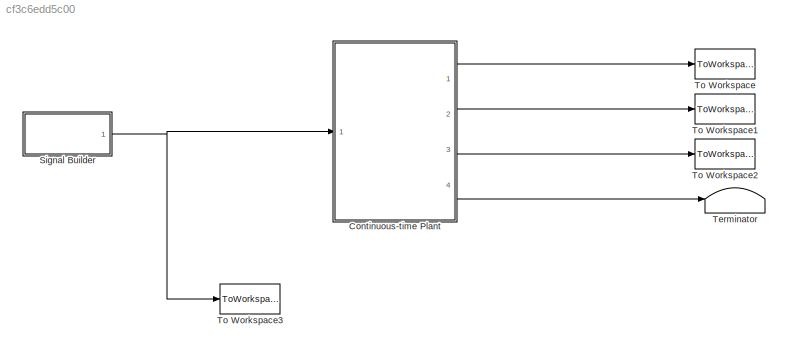
MODEL slx_cf3c6edd5c00
KIND model
CONFIG AbsTol = auto
CONFIG EnableMultiTasking = off
CONFIG FixedStep = auto
CONFIG MaxStep = MaxStep
CONFIG MinStep = auto
CONFIG RelTol = RelTol
CONFIG SampleTimeConstraint = Unconstrained
CONFIG Solver = VariableStepAuto
CONFIG SolverName = VariableStepAuto
CONFIG StartTime = 0.0
CONFIG StopTime = T
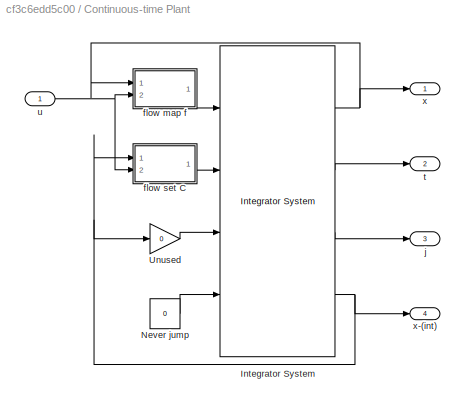
BLOCK [SubSystem] Continuous-time Plant
  CopyFcn = set_param(gcb,'LinkStatus','none'),                                      \nset_param(gcs, 'MaxStep', 'MaxStep', 'RelTol', 'RelTol','StopTime', 'T')
  LoadFcn = set_param(gcb,'LinkStatus','none')
  Ports = [1, 4]
  RequestExecContextInheritance = off
BLOCK [Reference] Continuous-time Plant/Integrator System  REF=HyEQ_Library/Other/Integrator System
  Ports = [4, 4]
  Priority = 2
  SourceBlock = HyEQ_Library/Other/Integrator System
  SourceProductName = Hybrid Equations Toolbox
  SourceType = Hybrid Integrator
BLOCK [Constant] Continuous-time Plant/Never jump
  Value = 0
BLOCK [Gain] Continuous-time Plant/Unused
  Gain = 0
  OutDataTypeStr = Inherit: Inherit via internal rule
  ParamDataTypeStr = Inherit: Inherit via internal rule
  SaturateOnIntegerOverflow = off
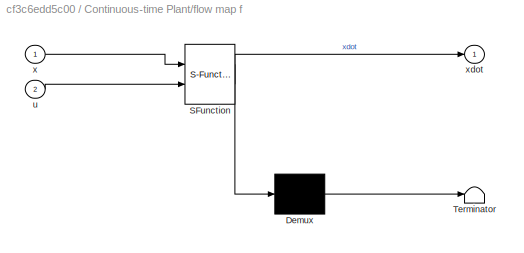
BLOCK [SubSystem] Continuous-time Plant/flow map f
  ErrorFcn = Stateflow.Translate.translate
  PermitHierarchicalResolution = ExplicitOnly
  Ports = [2, 1]
  RequestExecContextInheritance = off
  SFBlockType = MATLAB Function
  TreatAsAtomicUnit = on
BLOCK [Demux] Continuous-time Plant/flow map f/ Demux 
  Outputs = 1
  Ports = [1, 1]
BLOCK [S-Function] Continuous-time Plant/flow map f/ SFunction 
  EnableBusSupport = on
  FunctionName = sf_sfun
  PortCounts = [2 2]
  Ports = [2, 2]
  SFcnIsStateOwnerBlock = off
  SFunctionDeploymentMode = off
  Tag = Stateflow S-Function TemperatureInAroom 21
BLOCK [Terminator] Continuous-time Plant/flow map f/ Terminator 
BLOCK [Inport] Continuous-time Plant/flow map f/u
  IconDisplay = Port number
  Port = 2
BLOCK [Inport] Continuous-time Plant/flow map f/x
  IconDisplay = Port number
BLOCK [Outport] Continuous-time Plant/flow map f/xdot
  IconDisplay = Port number
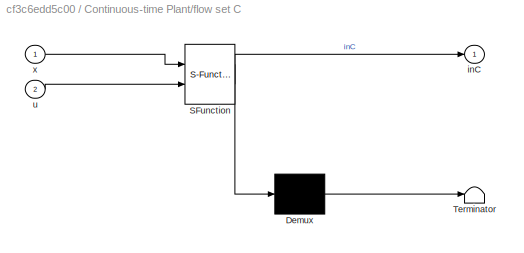
BLOCK [SubSystem] Continuous-time Plant/flow set C
  ErrorFcn = Stateflow.Translate.translate
  PermitHierarchicalResolution = ExplicitOnly
  Ports = [2, 1]
  RequestExecContextInheritance = off
  SFBlockType = MATLAB Function
  TreatAsAtomicUnit = on
BLOCK [Demux] Continuous-time Plant/flow set C/ Demux 
  Outputs = 1
  Ports = [1, 1]
BLOCK [S-Function] Continuous-time Plant/flow set C/ SFunction 
  EnableBusSupport = on
  FunctionName = sf_sfun
  PortCounts = [2 2]
  Ports = [2, 2]
  SFcnIsStateOwnerBlock = off
  SFunctionDeploymentMode = off
  Tag = Stateflow S-Function TemperatureInAroom 22
BLOCK [Terminator] Continuous-time Plant/flow set C/ Terminator 
BLOCK [Outport] Continuous-time Plant/flow set C/inC
  IconDisplay = Port number
BLOCK [Inport] Continuous-time Plant/flow set C/u
  IconDisplay = Port number
  Port = 2
BLOCK [Inport] Continuous-time Plant/flow set C/x
  IconDisplay = Port number
BLOCK [Outport] Continuous-time Plant/j
  IconDisplay = Port number
  Port = 3
  PortDimensions = 1
BLOCK [Outport] Continuous-time Plant/t
  IconDisplay = Port number
  Port = 2
  PortDimensions = 1
BLOCK [Inport] Continuous-time Plant/u
  IconDisplay = Port number
  PortDimensions = input_dim
BLOCK [Outport] Continuous-time Plant/x
  IconDisplay = Port number
  PortDimensions = state_dim
BLOCK [Outport] Continuous-time Plant/x-(int)
  IconDisplay = Port number
  Port = 4
  PortDimensions = state_dim
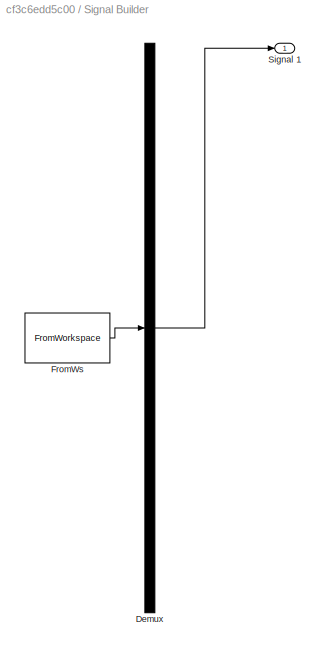
BLOCK [SubSystem] Signal Builder
  ClipboardFcn = sigbuilder_block('clipboard');
  CloseFcn = sigbuilder_block('close');
  ContinueFcn = sigbuilder_block('continue');
  CopyFcn = sigbuilder_block('copy');
  DeleteFcn = sigbuilder_block('delete');
  LoadFcn = sigbuilder_block('load');
  MaskHideContents = on
  ModelCloseFcn = sigbuilder_block('modelClose');
  NameChangeFcn = sigbuilder_block('namechange');
  OpenFcn = sigbuilder_block('open',[437.6 199.2 550.4 400 ]);
  PauseFcn = sigbuilder_block('pause');
  Ports = [0, 1]
  PreSaveFcn = sigbuilder_block('preSave');
  RequestExecContextInheritance = off
  StartFcn = sigbuilder_block('start');
  StopFcn = sigbuilder_block('stop');
  Tag = STV Subsys
BLOCK [Demux] Signal Builder/Demux
  Outputs = 1
  Ports = [1, 1]
  Tag = STV Demux
BLOCK [FromWorkspace] Signal Builder/FromWs
  SampleTime = 0
  Tag = STV FromWs
  VariableName = tuvar
  ZeroCross = on
BLOCK [Outport] Signal Builder/Signal 1
  IconDisplay = Port number
  Tag = STV Outport
BLOCK [Terminator] Terminator
BLOCK [ToWorkspace] To Workspace
  FixptAsFi = on
  MaxDataPoints = inf
  Ports = [1]
  SampleTime = -1
  VariableName = T
BLOCK [ToWorkspace] To Workspace1
  FixptAsFi = on
  MaxDataPoints = inf
  Ports = [1]
  SampleTime = -1
  VariableName = t
BLOCK [ToWorkspace] To Workspace2
  FixptAsFi = on
  MaxDataPoints = inf
  Ports = [1]
  SampleTime = -1
  VariableName = j
BLOCK [ToWorkspace] To Workspace3
  FixptAsFi = on
  MaxDataPoints = inf
  Ports = [1]
  SampleTime = -1
  VariableName = u
NET Continuous-time Plant/Integrator System:1 -> Continuous-time Plant/flow map f:1, Continuous-time Plant/x:1
LINE Continuous-time Plant/Integrator System:2 -> Continuous-time Plant/t:1
LINE Continuous-time Plant/Integrator System:3 -> Continuous-time Plant/j:1
NET Continuous-time Plant/Integrator System:4 -> Continuous-time Plant/Unused:1, Continuous-time Plant/flow set C:1, Continuous-time Plant/x-(int):1
LINE Continuous-time Plant/Never jump:1 -> Continuous-time Plant/Integrator System:4
LINE Continuous-time Plant/Unused:1 -> Continuous-time Plant/Integrator System:3
LINE Continuous-time Plant/flow map f:1 -> Continuous-time Plant/Integrator System:1
LINE Continuous-time Plant/flow set C:1 -> Continuous-time Plant/Integrator System:2
NET Continuous-time Plant/u:1 -> Continuous-time Plant/flow map f:2, Continuous-time Plant/flow set C:2
LINE Continuous-time Plant:1 -> To Workspace:1
LINE Continuous-time Plant:2 -> To Workspace1:1
LINE Continuous-time Plant:3 -> To Workspace2:1
LINE Continuous-time Plant:4 -> Terminator:1
NET Signal Builder:1 -> Continuous-time Plant:1, To Workspace3:1
note: NET lines group one-source signal fan-out (src -> all destinations, sorted); 1:1 wires keep LINE
CHART Continuous-time Plant/flow map f states=1 transitions=1
  STATE_LABEL 'eML_blk_kernel()'
  STATE_LABEL 'SCRIPT:\nfunction xdot = f(x, u)\n% Define the flow map for the continuous process here.\n%a=parameters(1);\n%Tr=parameters(2);\n%Tdelta=parameters(3);\na=1;\nTr=65;\nTdelta=20;\nT=x;\nTdot=-a*T+Tr+Tdelta*u;\n\nxdot =Tdot;\n\n\n'
CHART Continuous-time Plant/flow set C states=1 transitions=1
  STATE_LABEL 'eML_blk_kernel()'
  STATE_LABEL 'SCRIPT:\nfunction inC = C(x, u)\n    % Define the flow set indicator function for the continuous process here.\n    inC = 1;\nend'
